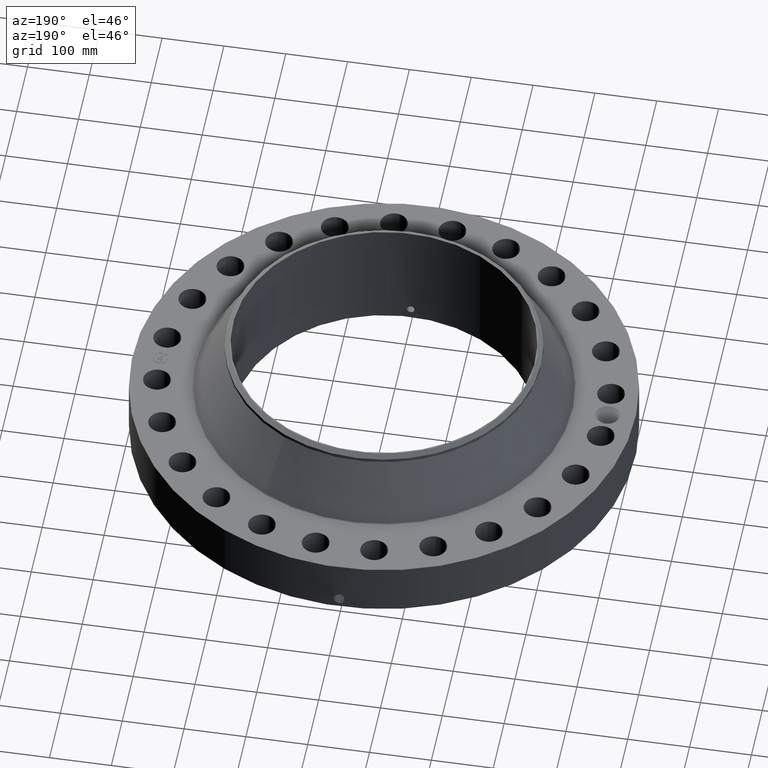
[diagram: clean part render]
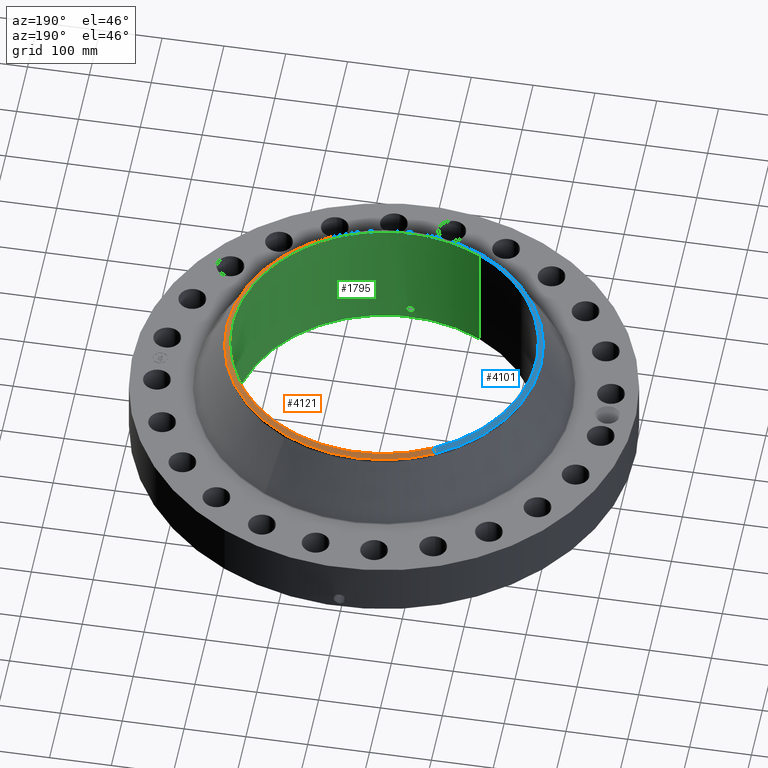
[diagram: same view with three faces highlighted in distinct colors, each labeled with its STEP entity id]
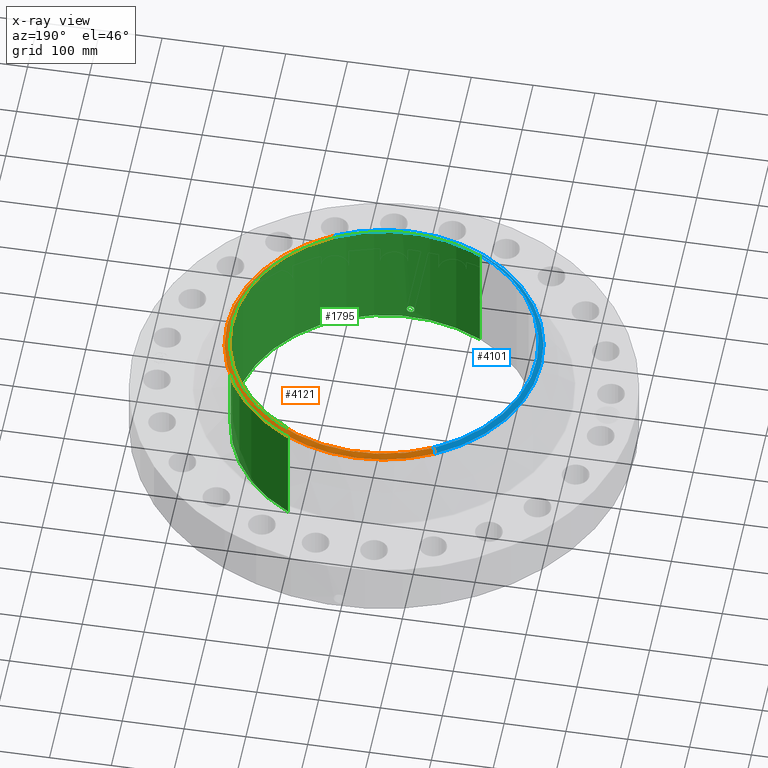
[diagram: x-ray of the same camera — body ghosted, the three highlighted faces saturated]
A machine part, auxiliary view with three faces highlighted in distinct colors.
The next image is the same camera in x-ray (body ghosted, the three faces saturated) — at least one of them is partly hidden behind the body in this view.
Their STEP definitions:

[orange] entity #4121 — the highlighted conical surface has half-angle 52.5 deg.
#3246=AXIS2_PLACEMENT_3D('Circle Axis2P3D',#3244,#3245,$) ;
#4066=AXIS2_PLACEMENT_3D('Cone Axis2P3D',#4063,#4064,#4065) ;
#4104=AXIS2_PLACEMENT_3D('Circle Axis2P3D',#4102,#4103,$) ;
#4111=AXIS2_PLACEMENT_3D('Circle Axis2P3D',#4109,#4110,$) ;
#3244=CARTESIAN_POINT('Axis2P3D Location',(0.,0.,7.75000000003)) ;
#3248=CARTESIAN_POINT('Vertex',(4.65222085149,-8.51583314735,7.75000000003)) ;
#3250=CARTESIAN_POINT('Vertex',(-4.65222085149,8.51583314735,7.75000000003)) ;
#4063=CARTESIAN_POINT('Axis2P3D Location',(0.,0.,7.75000000003)) ;
#4068=CARTESIAN_POINT('Line Origine',(4.72323811878,-8.64582938315,7.63633591372)) ;
#4072=CARTESIAN_POINT('Vertex',(4.79425538606,-8.77582561894,7.52267182741)) ;
#4075=CARTESIAN_POINT('Line Origine',(-4.72323811878,8.64582938315,7.63633591372)) ;
#4079=CARTESIAN_POINT('Vertex',(-4.79425538606,8.77582561894,7.52267182741)) ;
#4102=CARTESIAN_POINT('Axis2P3D Location',(0.,0.,7.52267182741)) ;
#4106=CARTESIAN_POINT('Vertex',(4.79425538606,8.77582561894,7.52267182741)) ;
#4109=CARTESIAN_POINT('Axis2P3D Location',(0.,0.,7.52267182741)) ;
#3245=DIRECTION('Axis2P3D Direction',(0.,0.,-0.0393700787402)) ;
#4064=DIRECTION('Axis2P3D Direction',(-0.,-0.,-0.0393700787402)) ;
#4065=DIRECTION('Axis2P3D XDirection',(-0.0188750212049,0.0345504945626,0.)) ;
#4069=DIRECTION('Vector Direction',(0.014974561121,-0.02741075027,-0.023966985394)) ;
#4076=DIRECTION('Vector Direction',(-0.014974561121,0.02741075027,-0.023966985394)) ;
#4103=DIRECTION('Axis2P3D Direction',(0.,0.,-0.0393700787402)) ;
#4110=DIRECTION('Axis2P3D Direction',(0.,0.,-0.0393700787402)) ;
#4070=VECTOR('Line Direction',#4069,0.0393700787402) ;
#4077=VECTOR('Line Direction',#4076,0.0393700787402) ;
#4115=ORIENTED_EDGE('',*,*,#4081,.F.) ;
#4116=ORIENTED_EDGE('',*,*,#3252,.F.) ;
#4117=ORIENTED_EDGE('',*,*,#4074,.T.) ;
#4118=ORIENTED_EDGE('',*,*,#4108,.T.) ;
#4119=ORIENTED_EDGE('',*,*,#4113,.F.) ;
#4121=ADVANCED_FACE('PartBody',(#4120),#4067,.T.) ;
#3247=CIRCLE('generated circle',#3246,9.70374015752) ;
#4105=CIRCLE('generated circle',#4104,10.) ;
#4112=CIRCLE('generated circle',#4111,10.) ;
#4067=CONICAL_SURFACE('Cone',#4066,9.70374015752,0.916297857297) ;
#3252=EDGE_CURVE('',#3249,#3251,#3247,.F.) ;
#4074=EDGE_CURVE('',#3249,#4073,#4071,.T.) ;
#4081=EDGE_CURVE('',#3251,#4080,#4078,.T.) ;
#4108=EDGE_CURVE('',#4073,#4107,#4105,.F.) ;
#4113=EDGE_CURVE('',#4080,#4107,#4112,.T.) ;
#4114=EDGE_LOOP('',(#4115,#4116,#4117,#4118,#4119)) ;
#4120=FACE_OUTER_BOUND('',#4114,.T.) ;
#4071=LINE('Line',#4068,#4070) ;
#4078=LINE('Line',#4075,#4077) ;
#3249=VERTEX_POINT('',#3248) ;
#3251=VERTEX_POINT('',#3250) ;
#4073=VERTEX_POINT('',#4072) ;
#4080=VERTEX_POINT('',#4079) ;
#4107=VERTEX_POINT('',#4106) ;

[blue] entity #4101 — the highlighted conical surface has half-angle 52.5 deg.
#3255=AXIS2_PLACEMENT_3D('Circle Axis2P3D',#3253,#3254,$) ;
#4066=AXIS2_PLACEMENT_3D('Cone Axis2P3D',#4063,#4064,#4065) ;
#4084=AXIS2_PLACEMENT_3D('Circle Axis2P3D',#4082,#4083,$) ;
#4091=AXIS2_PLACEMENT_3D('Circle Axis2P3D',#4089,#4090,$) ;
#3248=CARTESIAN_POINT('Vertex',(4.65222085149,-8.51583314735,7.75000000003)) ;
#3250=CARTESIAN_POINT('Vertex',(-4.65222085149,8.51583314735,7.75000000003)) ;
#3253=CARTESIAN_POINT('Axis2P3D Location',(0.,0.,7.75000000003)) ;
#4063=CARTESIAN_POINT('Axis2P3D Location',(0.,0.,7.75000000003)) ;
#4068=CARTESIAN_POINT('Line Origine',(4.72323811878,-8.64582938315,7.63633591372)) ;
#4072=CARTESIAN_POINT('Vertex',(4.79425538606,-8.77582561894,7.52267182741)) ;
#4075=CARTESIAN_POINT('Line Origine',(-4.72323811878,8.64582938315,7.63633591372)) ;
#4079=CARTESIAN_POINT('Vertex',(-4.79425538606,8.77582561894,7.52267182741)) ;
#4082=CARTESIAN_POINT('Axis2P3D Location',(0.,0.,7.52267182741)) ;
#4086=CARTESIAN_POINT('Vertex',(-4.79425538606,-8.77582561894,7.52267182741)) ;
#4089=CARTESIAN_POINT('Axis2P3D Location',(0.,0.,7.52267182741)) ;
#3254=DIRECTION('Axis2P3D Direction',(0.,0.,-0.0393700787402)) ;
#4064=DIRECTION('Axis2P3D Direction',(-0.,-0.,-0.0393700787402)) ;
#4065=DIRECTION('Axis2P3D XDirection',(-0.0188750212049,0.0345504945626,0.)) ;
#4069=DIRECTION('Vector Direction',(0.014974561121,-0.02741075027,-0.023966985394)) ;
#4076=DIRECTION('Vector Direction',(-0.014974561121,0.02741075027,-0.023966985394)) ;
#4083=DIRECTION('Axis2P3D Direction',(0.,0.,-0.0393700787402)) ;
#4090=DIRECTION('Axis2P3D Direction',(0.,0.,-0.0393700787402)) ;
#4070=VECTOR('Line Direction',#4069,0.0393700787402) ;
#4077=VECTOR('Line Direction',#4076,0.0393700787402) ;
#4095=ORIENTED_EDGE('',*,*,#4074,.F.) ;
#4096=ORIENTED_EDGE('',*,*,#3257,.F.) ;
#4097=ORIENTED_EDGE('',*,*,#4081,.T.) ;
#4098=ORIENTED_EDGE('',*,*,#4088,.T.) ;
#4099=ORIENTED_EDGE('',*,*,#4093,.F.) ;
#4101=ADVANCED_FACE('PartBody',(#4100),#4067,.T.) ;
#3256=CIRCLE('generated circle',#3255,9.70374015752) ;
#4085=CIRCLE('generated circle',#4084,10.) ;
#4092=CIRCLE('generated circle',#4091,10.) ;
#4067=CONICAL_SURFACE('Cone',#4066,9.70374015752,0.916297857297) ;
#3257=EDGE_CURVE('',#3251,#3249,#3256,.F.) ;
#4074=EDGE_CURVE('',#3249,#4073,#4071,.T.) ;
#4081=EDGE_CURVE('',#3251,#4080,#4078,.T.) ;
#4088=EDGE_CURVE('',#4080,#4087,#4085,.F.) ;
#4093=EDGE_CURVE('',#4073,#4087,#4092,.T.) ;
#4094=EDGE_LOOP('',(#4095,#4096,#4097,#4098,#4099)) ;
#4100=FACE_OUTER_BOUND('',#4094,.T.) ;
#4071=LINE('Line',#4068,#4070) ;
#4078=LINE('Line',#4075,#4077) ;
#3249=VERTEX_POINT('',#3248) ;
#3251=VERTEX_POINT('',#3250) ;
#4073=VERTEX_POINT('',#4072) ;
#4080=VERTEX_POINT('',#4079) ;
#4087=VERTEX_POINT('',#4086) ;

[green] entity #1795 — the highlighted cylindrical surface (partial cylindrical patch) has radius 244.475 mm, axis along (0, 0, -1).
#254=AXIS2_PLACEMENT_3D('Circle Axis2P3D',#252,#253,$) ;
#1726=AXIS2_PLACEMENT_3D('Cylinder Axis2P3D',#1723,#1724,#1725) ;
#1730=AXIS2_PLACEMENT_3D('Circle Axis2P3D',#1728,#1729,$) ;
#252=CARTESIAN_POINT('Axis2P3D Location',(0.,0.,0.250000000001)) ;
#256=CARTESIAN_POINT('Vertex',(4.61447080908,8.44673215823,0.250000000001)) ;
#258=CARTESIAN_POINT('Vertex',(-4.61447080908,-8.44673215823,0.250000000001)) ;
#1723=CARTESIAN_POINT('Axis2P3D Location',(0.,0.,4.00000000002)) ;
#1728=CARTESIAN_POINT('Axis2P3D Location',(0.,0.,7.75000000003)) ;
#1732=CARTESIAN_POINT('Vertex',(4.61447080908,8.44673215823,7.75000000003)) ;
#1734=CARTESIAN_POINT('Vertex',(-4.61447080908,-8.44673215823,7.75000000003)) ;
#1737=CARTESIAN_POINT('Line Origine',(4.61447080908,8.44673215823,4.00000000002)) ;
#1742=CARTESIAN_POINT('Line Origine',(-4.61447080908,-8.44673215823,4.00000000002)) ;
#1754=CARTESIAN_POINT('Control Point',(0.219395640473,-9.62249918439,0.820143615352)) ;
#1755=CARTESIAN_POINT('Control Point',(0.194442916877,-9.62306811339,0.774467961186)) ;
#1756=CARTESIAN_POINT('Control Point',(0.157604791867,-9.62382710762,0.735287784769)) ;
#1757=CARTESIAN_POINT('Control Point',(0.111106772845,-9.62456527477,0.706756392372)) ;
#1758=CARTESIAN_POINT('Control Point',(0.0336714944592,-9.62515257644,0.684117146099)) ;
#1759=CARTESIAN_POINT('Control Point',(-0.0446733581887,-9.6249496081,0.691943940253)) ;
#1760=CARTESIAN_POINT('Control Point',(-0.070303761099,-9.62479204385,0.697956966167)) ;
#1761=CARTESIAN_POINT('Control Point',(-0.143960694993,-9.62409577409,0.725790478124)) ;
#1762=CARTESIAN_POINT('Control Point',(-0.203248804327,-9.62295930718,0.78050780318)) ;
#1763=CARTESIAN_POINT('Control Point',(-0.232213125723,-9.62221396751,0.826748903213)) ;
#1764=CARTESIAN_POINT('Control Point',(-0.255841100095,-9.62160132498,0.904894882183)) ;
#1765=CARTESIAN_POINT('Control Point',(-0.248281734312,-9.62179716896,0.984257576298)) ;
#1766=CARTESIAN_POINT('Control Point',(-0.242047982647,-9.62196101179,1.01081839)) ;
#1767=CARTESIAN_POINT('Control Point',(-0.232314831597,-9.62220462327,1.03620796393)) ;
#1768=CARTESIAN_POINT('Control Point',(-0.219395640473,-9.62249918439,1.05985638466)) ;
#1769=CARTESIAN_POINT('Vertex',(0.219395640473,-9.62249918439,0.820143615352)) ;
#1771=CARTESIAN_POINT('Vertex',(-0.219395640473,-9.62249918439,1.05985638466)) ;
#1775=CARTESIAN_POINT('Control Point',(-0.219395640473,-9.62249918439,1.05985638466)) ;
#1776=CARTESIAN_POINT('Control Point',(-0.194442916877,-9.62306811339,1.10553203882)) ;
#1777=CARTESIAN_POINT('Control Point',(-0.157604791867,-9.62382710762,1.14471221524)) ;
#1778=CARTESIAN_POINT('Control Point',(-0.11110677285,-9.62456527477,1.17324360763)) ;
#1779=CARTESIAN_POINT('Control Point',(-0.0336714944533,-9.62515257644,1.19588285391)) ;
#1780=CARTESIAN_POINT('Control Point',(0.0446733582071,-9.6249496081,1.18805605975)) ;
#1781=CARTESIAN_POINT('Control Point',(0.0703037610688,-9.62479204385,1.18204303385)) ;
#1782=CARTESIAN_POINT('Control Point',(0.143960694994,-9.62409577409,1.15420952189)) ;
#1783=CARTESIAN_POINT('Control Point',(0.203248804349,-9.62295930717,1.09949219681)) ;
#1784=CARTESIAN_POINT('Control Point',(0.232213125711,-9.62221396751,1.05325109683)) ;
#1785=CARTESIAN_POINT('Control Point',(0.255841100089,-9.62160132498,0.975105117869)) ;
#1786=CARTESIAN_POINT('Control Point',(0.248281734317,-9.62179716896,0.895742423756)) ;
#1787=CARTESIAN_POINT('Control Point',(0.242047982633,-9.62196101179,0.869181609974)) ;
#1788=CARTESIAN_POINT('Control Point',(0.232314831587,-9.62220462327,0.84379203606)) ;
#1789=CARTESIAN_POINT('Control Point',(0.219395640473,-9.62249918439,0.820143615352)) ;
#253=DIRECTION('Axis2P3D Direction',(0.,0.,-0.0393700787402)) ;
#1724=DIRECTION('Axis2P3D Direction',(0.,0.,-0.0393700787402)) ;
#1725=DIRECTION('Axis2P3D XDirection',(-0.0188750212049,-0.0345504945626,0.)) ;
#1729=DIRECTION('Axis2P3D Direction',(0.,0.,-0.0393700787402)) ;
#1738=DIRECTION('Vector Direction',(0.,0.,-0.0393700787402)) ;
#1743=DIRECTION('Vector Direction',(0.,0.,-0.0393700787402)) ;
#1739=VECTOR('Line Direction',#1738,0.0393700787402) ;
#1744=VECTOR('Line Direction',#1743,0.0393700787402) ;
#1748=ORIENTED_EDGE('',*,*,#1736,.F.) ;
#1749=ORIENTED_EDGE('',*,*,#1741,.T.) ;
#1750=ORIENTED_EDGE('',*,*,#260,.T.) ;
#1751=ORIENTED_EDGE('',*,*,#1746,.F.) ;
#1792=ORIENTED_EDGE('',*,*,#1773,.F.) ;
#1793=ORIENTED_EDGE('',*,*,#1790,.F.) ;
#1794=FACE_BOUND('',#1791,.T.) ;
#1795=ADVANCED_FACE('PartBody',(#1752,#1794),#1727,.F.) ;
#1753=B_SPLINE_CURVE_WITH_KNOTS('',5,(#1754,#1755,#1756,#1757,#1758,#1759,#1760,#1761,#1762,#1763,#1764,#1765,#1766,#1767,#1768),.UNSPECIFIED.,.F.,.U.,(6,3,3,3,6),(0.,9.34848971789,14.0229242127,23.3729649406,28.2131149511),.UNSPECIFIED.) ;
#1774=B_SPLINE_CURVE_WITH_KNOTS('',5,(#1775,#1776,#1777,#1778,#1779,#1780,#1781,#1782,#1783,#1784,#1785,#1786,#1787,#1788,#1789),.UNSPECIFIED.,.F.,.U.,(6,3,3,3,6),(0.,9.34848971782,14.0229242148,23.3729649459,28.2131149529),.UNSPECIFIED.) ;
#255=CIRCLE('generated circle',#254,9.62500000004) ;
#1731=CIRCLE('generated circle',#1730,9.62500000004) ;
#1727=CYLINDRICAL_SURFACE('generated cylinder',#1726,9.62500000004) ;
#260=EDGE_CURVE('',#257,#259,#255,.T.) ;
#1736=EDGE_CURVE('',#1733,#1735,#1731,.T.) ;
#1741=EDGE_CURVE('',#1733,#257,#1740,.T.) ;
#1746=EDGE_CURVE('',#1735,#259,#1745,.T.) ;
#1773=EDGE_CURVE('',#1770,#1772,#1753,.T.) ;
#1790=EDGE_CURVE('',#1772,#1770,#1774,.T.) ;
#1747=EDGE_LOOP('',(#1748,#1749,#1750,#1751)) ;
#1791=EDGE_LOOP('',(#1792,#1793)) ;
#1752=FACE_OUTER_BOUND('',#1747,.T.) ;
#1740=LINE('Line',#1737,#1739) ;
#1745=LINE('Line',#1742,#1744) ;
#257=VERTEX_POINT('',#256) ;
#259=VERTEX_POINT('',#258) ;
#1733=VERTEX_POINT('',#1732) ;
#1735=VERTEX_POINT('',#1734) ;
#1770=VERTEX_POINT('',#1769) ;
#1772=VERTEX_POINT('',#1771) ;